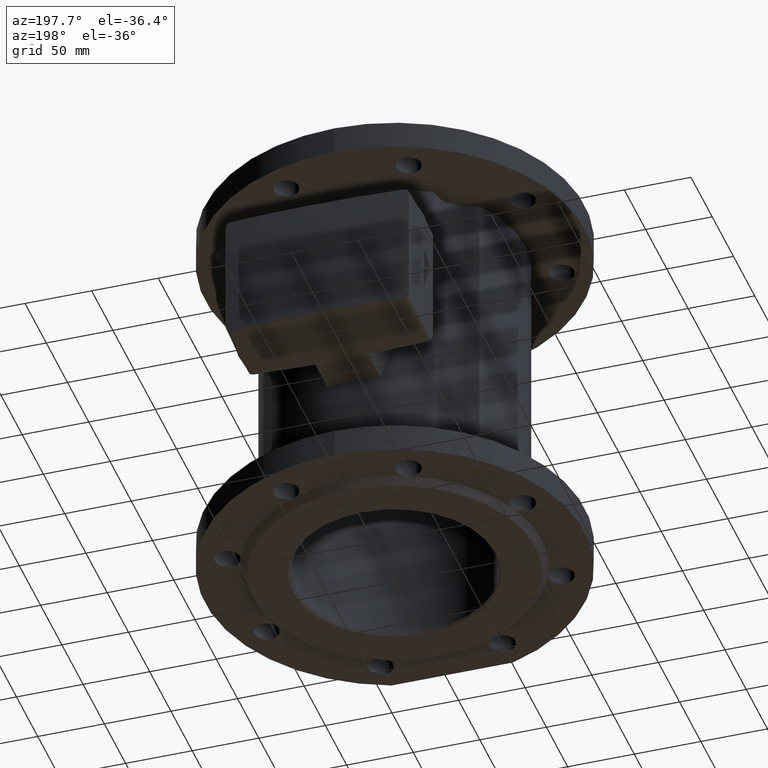
[diagram: clean part render]
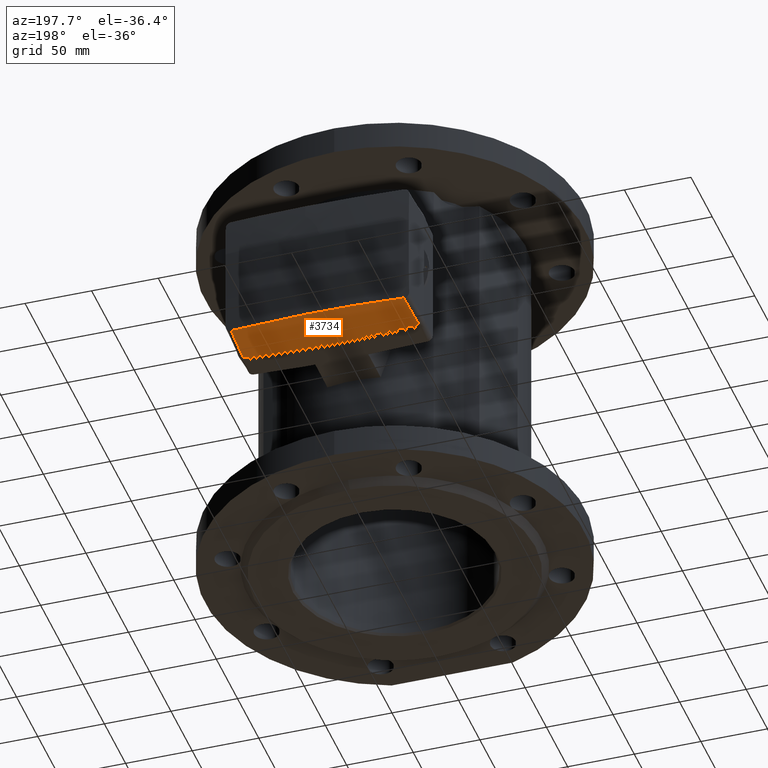
[diagram: same view with one face highlighted and labeled with its STEP entity id]
A machine part, auxiliary view. The second image highlights one B-rep face of the part: STEP entity #3734.
In plain terms, the highlighted face is a freeform B-spline surface patch.
Its self-contained STEP definition (entity closure, byte-faithful):
#10 = CARTESIAN_POINT ( 'NONE',  ( -22.01152804152344800, 82.70059520082750737, -49.24999999999997868 ) ) ;
#19 = ORIENTED_EDGE ( 'NONE', *, *, #4022, .T. ) ;
#23 = CARTESIAN_POINT ( 'NONE',  ( 65.96776112861010688, 85.19083051112994553, -49.25000052261439976 ) ) ;
#128 = CARTESIAN_POINT ( 'NONE',  ( -64.84050466158416270, 117.4763868202882549, -48.11961033022294032 ) ) ;
#131 = VERTEX_POINT ( 'NONE', #2328 ) ;
#167 = CARTESIAN_POINT ( 'NONE',  ( 21.63579844983529199, 119.6930842700958237, -47.96524257497553378 ) ) ;
#226 = CARTESIAN_POINT ( 'NONE',  ( -65.96500035599018474, 85.19062203082275175, -49.25000052324734412 ) ) ;
#230 = EDGE_CURVE ( 'NONE', #131, #6231, #1084, .T. ) ;
#237 = CARTESIAN_POINT ( 'NONE',  ( 65.68499974840227651, 93.28930457393214226, -48.96644847959890257 ) ) ;
#330 = VERTEX_POINT ( 'NONE', #3754 ) ;
#426 = B_SPLINE_SURFACE_WITH_KNOTS ( 'NONE', 1, 3, ( 
 ( #2237, #3197, #1734, #2701 ),
 ( #1768, #1225, #4290, #727 ) ),
 .UNSPECIFIED., .F., .F., .F.,
 ( 2, 2 ),
 ( 4, 4 ),
 ( 0.0000000000000000000, 1.000000000000000000 ),
 ( 6.203139855697665794, 6.363230758658818154 ),
 .UNSPECIFIED. ) ;
#453 = CARTESIAN_POINT ( 'NONE',  ( -44.01741734072290768, 83.53128276647831285, -49.24999999999998579 ) ) ;
#582 = CARTESIAN_POINT ( 'NONE',  ( 44.00408050029942331, 83.73847532772525426, -49.24999999999999289 ) ) ;
#727 = CARTESIAN_POINT ( 'NONE',  ( 69.96952044925816949, 131.7135908207039563, -47.63627140949659378 ) ) ;
#794 = EDGE_CURVE ( 'NONE', #1928, #6231, #2674, .T. ) ;
#797 = CARTESIAN_POINT ( 'NONE',  ( 65.40224231422634205, 101.3877264305979509, -48.68290276471733335 ) ) ;
#846 = CARTESIAN_POINT ( 'NONE',  ( -65.78177171218250407, 90.51767022612808944, -49.06349242076893802 ) ) ;
#1084 = B_SPLINE_CURVE_WITH_KNOTS ( 'NONE', 3,
 ( #6178, #453, #10, #4053, #4550, #582, #5545, #5578 ),
 .UNSPECIFIED., .F., .F.,
 ( 4, 2, 2, 4 ),
 ( 0.02863955323768626118, 0.5000003982336724828, 0.7356808207316655190, 0.9713612432296586663 ),
 .UNSPECIFIED. ) ;
#1225 = CARTESIAN_POINT ( 'NONE',  ( -23.42191898617475943, 127.9799317221749249, -47.63626293173570758 ) ) ;
#1645 = CARTESIAN_POINT ( 'NONE',  ( -10.81612787888918525, 119.8951288158303470, -47.95118836015002017 ) ) ;
#1708 = CARTESIAN_POINT ( 'NONE',  ( -65.96776110937756243, 85.19083076585651781, -49.25000052262578976 ) ) ;
#1734 = CARTESIAN_POINT ( 'NONE',  ( 23.42031631290967297, 78.40658643505324221, -49.36740459705549711 ) ) ;
#1768 = CARTESIAN_POINT ( 'NONE',  ( -69.96952044925259884, 131.7135908208921649, -47.63627140949659378 ) ) ;
#1829 = CARTESIAN_POINT ( 'NONE',  ( -65.96776110937756243, 85.19083076585651781, -49.25000052262578976 ) ) ;
#1845 = CARTESIAN_POINT ( 'NONE',  ( 64.84050466158656434, 117.4763868200334400, -48.11961033021639622 ) ) ;
#1928 = VERTEX_POINT ( 'NONE', #23 ) ;
#1929 = CARTESIAN_POINT ( 'NONE',  ( -65.12326278239754629, 109.3779456851274290, -48.40314866473404010 ) ) ;
#1989 = EDGE_CURVE ( 'NONE', #131, #330, #5355, .T. ) ;
#2030 = CARTESIAN_POINT ( 'NONE',  ( 64.84050466158656434, 117.4763868200334400, -48.11961033021639622 ) ) ;
#2192 = B_SPLINE_CURVE_WITH_KNOTS ( 'NONE', 3,
 ( #3208, #4144, #4736, #167, #3176, #1645, #4108, #4634, #4673, #128 ),
 .UNSPECIFIED., .F., .F.,
 ( 4, 2, 2, 2, 4 ),
 ( 0.4504630588146983361, 0.4829226340518929517, 0.5153822092890875117, 0.5478417845262821828, 0.5803013597634767429 ),
 .UNSPECIFIED. ) ;
#2237 = CARTESIAN_POINT ( 'NONE',  ( -69.96467112267889377, 82.14024554822773894, -49.36740398063539459 ) ) ;
#2277 = CARTESIAN_POINT ( 'NONE',  ( 65.96683758570756595, 85.19080429746867367, -49.24999936650170440 ) ) ;
#2280 = CARTESIAN_POINT ( 'NONE',  ( 65.96776112861010688, 85.19083051112994553, -49.25000052261439976 ) ) ;
#2328 = CARTESIAN_POINT ( 'NONE',  ( -65.96500035599018474, 85.19062203082275175, -49.25000052324734412 ) ) ;
#2347 = CARTESIAN_POINT ( 'NONE',  ( 64.93349806456802753, 114.8129740139307557, -48.21286032963667623 ) ) ;
#2362 = CARTESIAN_POINT ( 'NONE',  ( -65.87476444105526241, 87.85427654747890358, -49.15674547268564964 ) ) ;
#2374 = CARTESIAN_POINT ( 'NONE',  ( 65.96776112861010688, 85.19083051112994553, -49.25000052261439976 ) ) ;
#2400 = EDGE_LOOP ( 'NONE', ( #4408, #19, #5566, #4604, #4816, #2871 ) ) ;
#2430 = CARTESIAN_POINT ( 'NONE',  ( -65.68877898177963459, 93.18106392310832575, -48.97023989393431265 ) ) ;
#2670 = CARTESIAN_POINT ( 'NONE',  ( -65.96683759854732898, 85.19080429883265992, -49.24999936650170440 ) ) ;
#2674 = B_SPLINE_CURVE_WITH_KNOTS ( 'NONE', 3,
 ( #2374, #2277, #6327, #2842 ),
 .UNSPECIFIED., .F., .F.,
 ( 4, 4 ),
 ( 0.0000000000000000000, 1.000000000000000000 ),
 .UNSPECIFIED. ) ;
#2701 = CARTESIAN_POINT ( 'NONE',  ( 69.96467112268462074, 82.14024554803955880, -49.36740398063539459 ) ) ;
#2842 = CARTESIAN_POINT ( 'NONE',  ( 65.96500033619024350, 85.19062177281418258, -49.25000052323593991 ) ) ;
#2871 = ORIENTED_EDGE ( 'NONE', *, *, #3835, .T. ) ;
#3149 = CARTESIAN_POINT ( 'NONE',  ( 65.96500033619024350, 85.19062177281418258, -49.25000052323593991 ) ) ;
#3176 = CARTESIAN_POINT ( 'NONE',  ( 10.81518631092099447, 119.8951405390574081, -47.95118754476764167 ) ) ;
#3197 = CARTESIAN_POINT ( 'NONE',  ( -23.42031631288279314, 78.40658643785776860, -49.36740459705549711 ) ) ;
#3208 = CARTESIAN_POINT ( 'NONE',  ( 64.84050466158656434, 117.4763868200334400, -48.11961033021639622 ) ) ;
#3684 = VERTEX_POINT ( 'NONE', #6256 ) ;
#3734 = ADVANCED_FACE ( 'NONE', ( #4260 ), #426, .T. ) ;
#3754 = CARTESIAN_POINT ( 'NONE',  ( -65.96776110937756243, 85.19083076585651781, -49.25000052262578976 ) ) ;
#3835 = EDGE_CURVE ( 'NONE', #330, #3684, #5400, .T. ) ;
#3927 = CARTESIAN_POINT ( 'NONE',  ( -64.84050466158416270, 117.4763868202882549, -48.11961033022294032 ) ) ;
#4022 = EDGE_CURVE ( 'NONE', #6084, #1928, #6363, .T. ) ;
#4053 = CARTESIAN_POINT ( 'NONE',  ( 11.00584770588803174, 82.70057655104479011, -49.25000000000000000 ) ) ;
#4108 = CARTESIAN_POINT ( 'NONE',  ( -21.63183292948842151, 119.6932169896302725, -47.96523333584034532 ) ) ;
#4144 = CARTESIAN_POINT ( 'NONE',  ( 54.05215425500109205, 118.2821839326200148, -48.06348192667473995 ) ) ;
#4260 = FACE_OUTER_BOUND ( 'NONE', #2400, .T. ) ;
#4290 = CARTESIAN_POINT ( 'NONE',  ( 23.42191898620123069, 127.9799317193963617, -47.63626293173570758 ) ) ;
#4408 = ORIENTED_EDGE ( 'NONE', *, *, #6497, .F. ) ;
#4550 = CARTESIAN_POINT ( 'NONE',  ( 22.00781103109184400, 82.90815381974319109, -49.24999999999999289 ) ) ;
#4604 = ORIENTED_EDGE ( 'NONE', *, *, #230, .F. ) ;
#4634 = CARTESIAN_POINT ( 'NONE',  ( -43.25505103046604916, 118.8864886796293092, -48.02139793258065481 ) ) ;
#4673 = CARTESIAN_POINT ( 'NONE',  ( -54.05407446548696271, 118.2820405100974313, -48.06349191693477252 ) ) ;
#4736 = CARTESIAN_POINT ( 'NONE',  ( 43.25353513445828924, 118.8865300048699964, -48.02139505624547411 ) ) ;
#4804 = CARTESIAN_POINT ( 'NONE',  ( 65.11948486596922692, 109.4861484566958438, -48.39936190319503595 ) ) ;
#4816 = ORIENTED_EDGE ( 'NONE', *, *, #1989, .T. ) ;
#4819 = CARTESIAN_POINT ( 'NONE',  ( -65.96591802859066433, 85.19072571195810895, -49.24999968325070654 ) ) ;
#5269 = CARTESIAN_POINT ( 'NONE',  ( 65.02649146603042141, 112.1495612261501265, -48.30611085394038895 ) ) ;
#5355 = B_SPLINE_CURVE_WITH_KNOTS ( 'NONE', 3,
 ( #226, #4819, #2670, #1708 ),
 .UNSPECIFIED., .F., .F.,
 ( 4, 4 ),
 ( 0.0000000000000000000, 1.000000000000000000 ),
 .UNSPECIFIED. ) ;
#5400 = B_SPLINE_CURVE_WITH_KNOTS ( 'NONE', 3,
 ( #1829, #2362, #846, #2430, #5919, #1929, #3927 ),
 .UNSPECIFIED., .F., .F.,
 ( 4, 3, 4 ),
 ( 5.706263829725374880E-08, 0.008000000000000154557, 0.03232500472056271112 ),
 .UNSPECIFIED. ) ;
#5545 = CARTESIAN_POINT ( 'NONE',  ( 54.99094304824239998, 84.36093152129731720, -49.25000000000000000 ) ) ;
#5566 = ORIENTED_EDGE ( 'NONE', *, *, #794, .T. ) ;
#5578 = CARTESIAN_POINT ( 'NONE',  ( 65.96500033619024350, 85.19062177281418258, -49.25000052323593991 ) ) ;
#5919 = CARTESIAN_POINT ( 'NONE',  ( -65.40602088916082835, 101.2795047193767033, -48.68669185200236171 ) ) ;
#6084 = VERTEX_POINT ( 'NONE', #2030 ) ;
#6178 = CARTESIAN_POINT ( 'NONE',  ( -65.96500035599018474, 85.19062203082275175, -49.25000052324734412 ) ) ;
#6231 = VERTEX_POINT ( 'NONE', #3149 ) ;
#6256 = CARTESIAN_POINT ( 'NONE',  ( -64.84050466158416270, 117.4763868202882549, -48.11961033022294032 ) ) ;
#6327 = CARTESIAN_POINT ( 'NONE',  ( 65.96591800290367757, 85.19072570962292446, -49.24999968325070654 ) ) ;
#6363 = B_SPLINE_CURVE_WITH_KNOTS ( 'NONE', 3,
 ( #1845, #2347, #5269, #4804, #797, #237, #2280 ),
 .UNSPECIFIED., .F., .F.,
 ( 4, 3, 4 ),
 ( 0.0000000000000000000, 0.008000000000000147618, 0.03232494765806417231 ),
 .UNSPECIFIED. ) ;
#6497 = EDGE_CURVE ( 'NONE', #6084, #3684, #2192, .T. ) ;